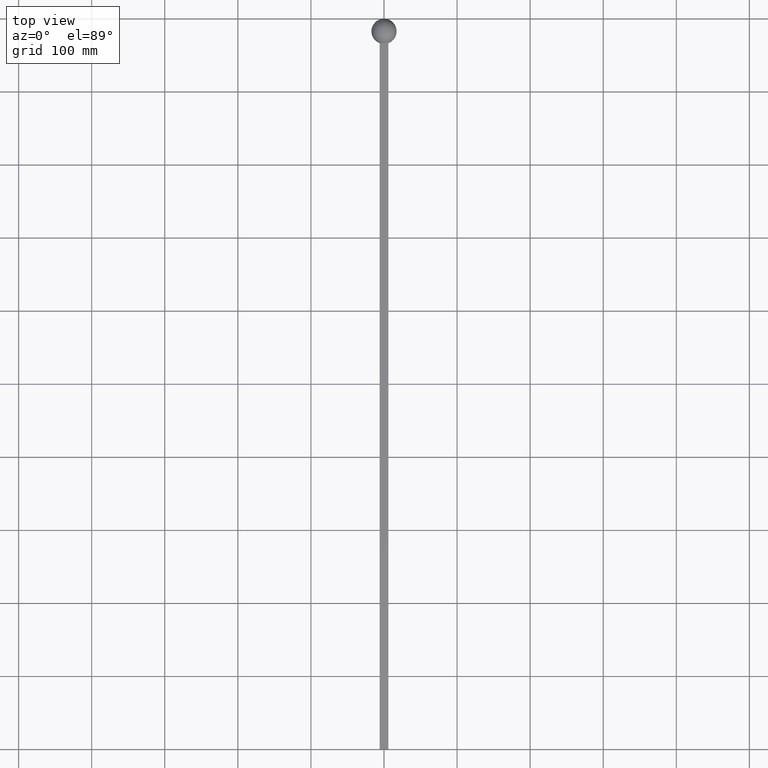
[diagram: clean part render]
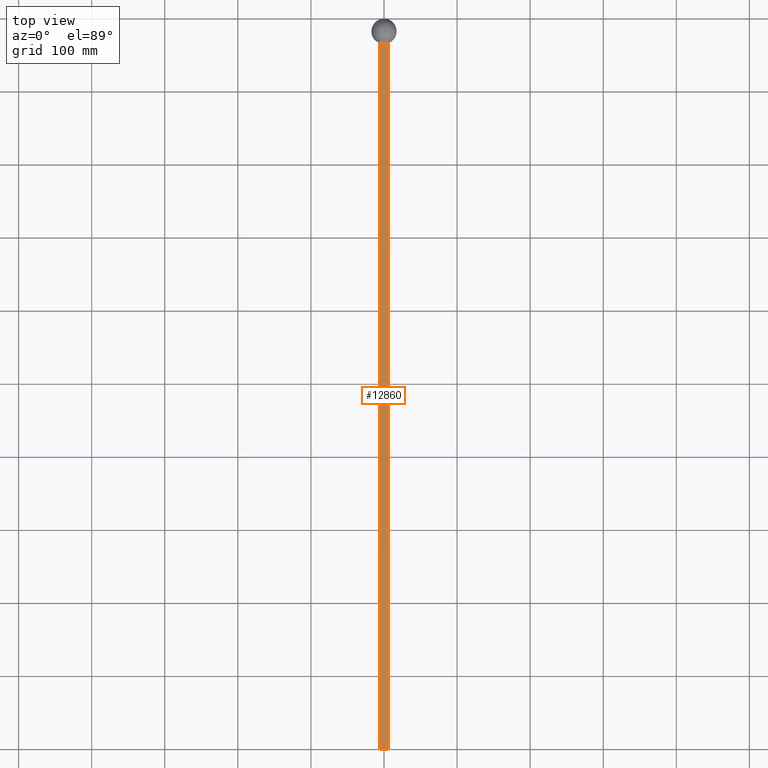
[diagram: same view with one face highlighted and labeled with its STEP entity id]
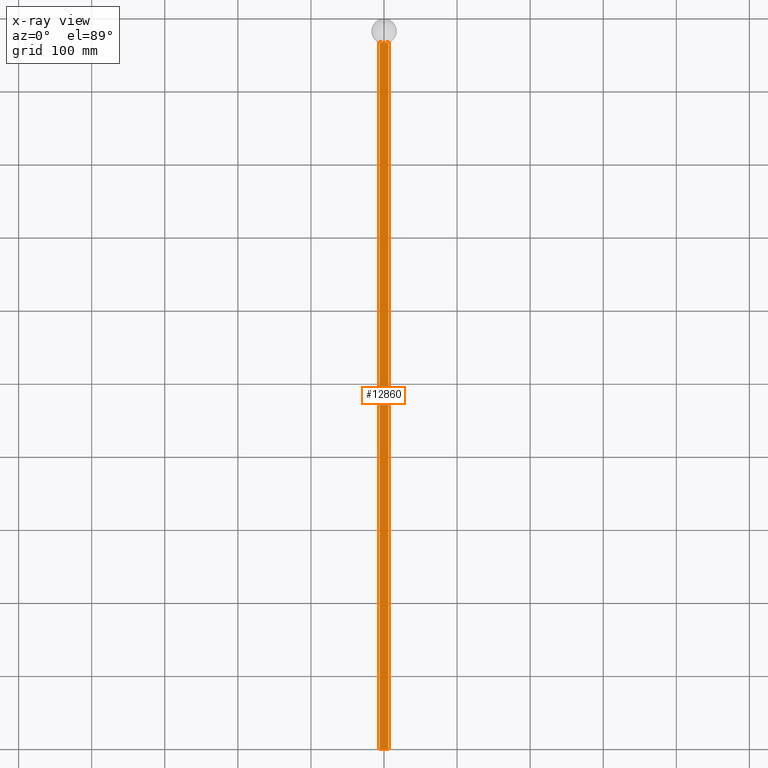
[diagram: x-ray of the same camera — body ghosted, the highlighted face saturated]
A machine part, top view. The second image highlights one B-rep face of the part: STEP entity #12860.
The next image is the same camera in x-ray: the body ghosted, the highlighted face saturated — about 0% of this face is hidden behind the body in this view.
In plain terms, the highlighted planar face has unit normal (-0, 0, 1).
Its self-contained STEP definition (entity closure, byte-faithful):
#488 = PLANE ( 'NONE',  #12742 ) ;
#1056 = CIRCLE ( 'NONE', #7446, 16.43928222277350315 ) ;
#1510 = CARTESIAN_POINT ( 'NONE',  ( -6.000000000000000000, 0.000000000000000000, 6.000000000000000000 ) ) ;
#1616 = CARTESIAN_POINT ( 'NONE',  ( -6.000000000000000000, 1000.002000000000066, 6.000000000000000000 ) ) ;
#1934 = VECTOR ( 'NONE', #6397, 1000.000000000000000 ) ;
#2523 = VECTOR ( 'NONE', #3544, 1000.000000000000000 ) ;
#3060 = VERTEX_POINT ( 'NONE', #6518 ) ;
#3085 = ORIENTED_EDGE ( 'NONE', *, *, #11972, .F. ) ;
#3544 = DIRECTION ( 'NONE',  ( -1.000000000000000000, -0.000000000000000000, -0.000000000000000000 ) ) ;
#3585 = CARTESIAN_POINT ( 'NONE',  ( 6.000000000000001776, 1000.002000000000066, 6.000000000000000000 ) ) ;
#3886 = LINE ( 'NONE', #3585, #1934 ) ;
#4257 = EDGE_LOOP ( 'NONE', ( #3085, #5787, #11211, #12805 ) ) ;
#5361 = CARTESIAN_POINT ( 'NONE',  ( -6.000000000000000000, 1000.002000000000066, 6.000000000000000000 ) ) ;
#5769 = EDGE_CURVE ( 'NONE', #7023, #12326, #6510, .T. ) ;
#5787 = ORIENTED_EDGE ( 'NONE', *, *, #7990, .F. ) ;
#5865 = VECTOR ( 'NONE', #6370, 1000.000000000000000 ) ;
#6364 = CARTESIAN_POINT ( 'NONE',  ( -5.999999999999996447, 967.1947721349862377, 6.000000000000000000 ) ) ;
#6370 = DIRECTION ( 'NONE',  ( 0.000000000000000000, -1.000000000000000000, 0.000000000000000000 ) ) ;
#6397 = DIRECTION ( 'NONE',  ( 0.000000000000000000, -1.000000000000000000, 0.000000000000000000 ) ) ;
#6510 = LINE ( 'NONE', #5361, #5865 ) ;
#6518 = CARTESIAN_POINT ( 'NONE',  ( 6.000000000000001776, 0.000000000000000000, 6.000000000000000000 ) ) ;
#6893 = CARTESIAN_POINT ( 'NONE',  ( 0.000000000000000000, 982.5000000000001137, 6.000000000000000000 ) ) ;
#6980 = DIRECTION ( 'NONE',  ( -0.000000000000000000, 0.000000000000000000, 1.000000000000000000 ) ) ;
#7023 = VERTEX_POINT ( 'NONE', #6364 ) ;
#7180 = VERTEX_POINT ( 'NONE', #10406 ) ;
#7446 = AXIS2_PLACEMENT_3D ( 'NONE', #6893, #6980, #8882 ) ;
#7990 = EDGE_CURVE ( 'NONE', #7180, #3060, #3886, .T. ) ;
#8882 = DIRECTION ( 'NONE',  ( 1.000000000000000000, 0.000000000000000000, 0.000000000000000000 ) ) ;
#10406 = CARTESIAN_POINT ( 'NONE',  ( 6.000000000000001776, 967.1947721349862377, 6.000000000000000000 ) ) ;
#10923 = CARTESIAN_POINT ( 'NONE',  ( -6.000000000000000000, 0.000000000000000000, 6.000000000000000000 ) ) ;
#11094 = FACE_OUTER_BOUND ( 'NONE', #4257, .T. ) ;
#11211 = ORIENTED_EDGE ( 'NONE', *, *, #12406, .F. ) ;
#11972 = EDGE_CURVE ( 'NONE', #3060, #12326, #12109, .T. ) ;
#12011 = DIRECTION ( 'NONE',  ( 1.000000000000000000, 0.000000000000000000, 0.000000000000000000 ) ) ;
#12109 = LINE ( 'NONE', #1510, #2523 ) ;
#12326 = VERTEX_POINT ( 'NONE', #10923 ) ;
#12406 = EDGE_CURVE ( 'NONE', #7023, #7180, #1056, .T. ) ;
#12742 = AXIS2_PLACEMENT_3D ( 'NONE', #1616, #12951, #12011 ) ;
#12805 = ORIENTED_EDGE ( 'NONE', *, *, #5769, .T. ) ;
#12860 = ADVANCED_FACE ( 'NONE', ( #11094 ), #488, .T. ) ;
#12951 = DIRECTION ( 'NONE',  ( -0.000000000000000000, 0.000000000000000000, 1.000000000000000000 ) ) ;